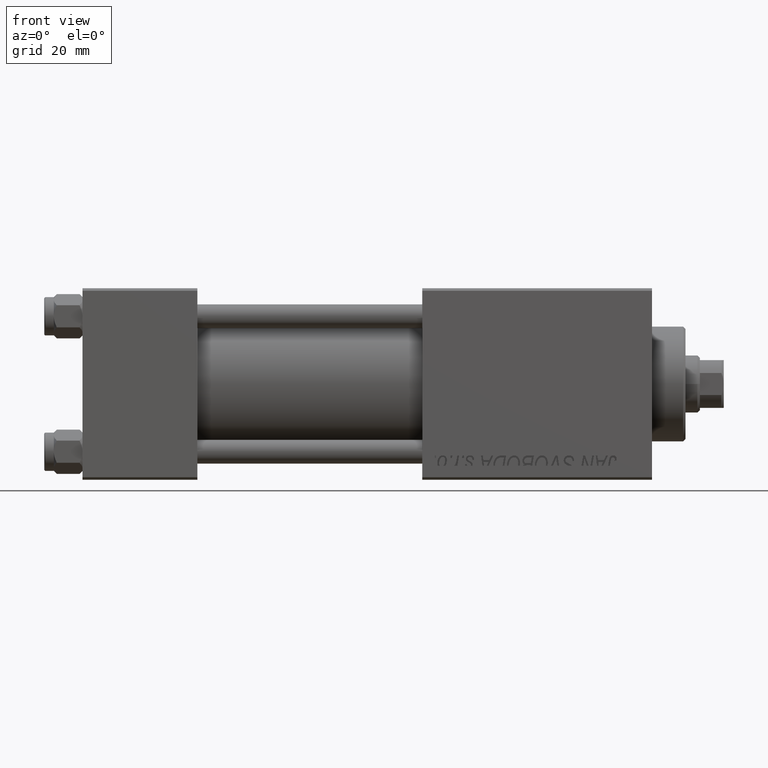
[diagram: clean part render]
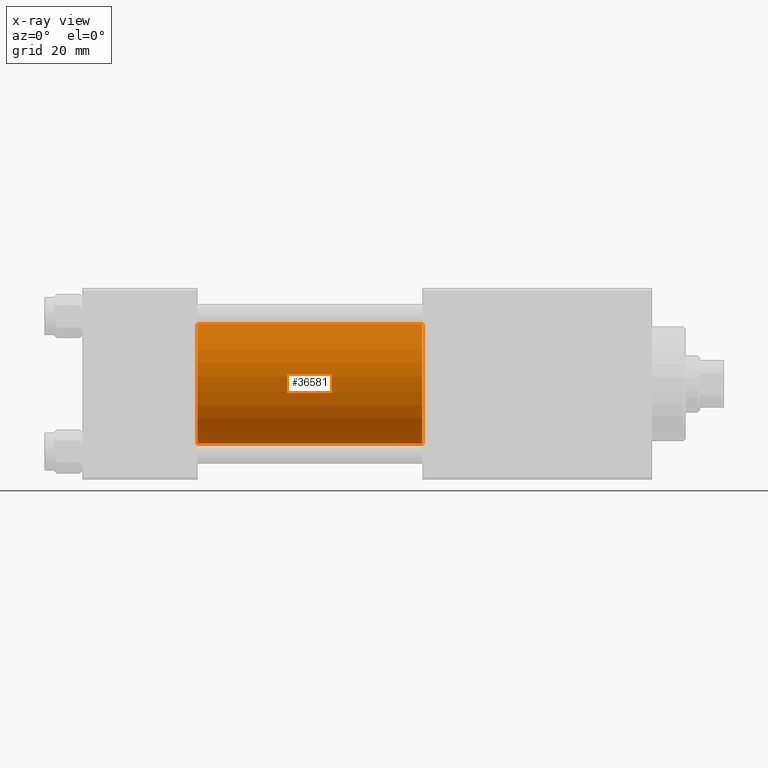
[diagram: x-ray — body ghosted, one internal face saturated and labeled with its STEP entity id]
A machine part, front view, then the same camera in x-ray: the body is ghosted and one INTERNAL B-rep face — a face not visible from any outside direction — is saturated and labeled: STEP entity #36581.
In plain terms, the highlighted cylindrical surface (partial cylindrical patch) has radius 12.5 mm, axis along (-1, -0, -0).
Its self-contained STEP definition (entity closure, byte-faithful):
#1509 = CARTESIAN_POINT ( 'NONE',  ( 71.00000000000001421, -2.602085213965210642E-15, 0.000000000000000000 ) ) ;
#2344 = VERTEX_POINT ( 'NONE', #37118 ) ;
#3014 = CARTESIAN_POINT ( 'NONE',  ( 71.00000000000001421, -1.071276715031019515E-15, -12.49999999999999645 ) ) ;
#3117 = CARTESIAN_POINT ( 'NONE',  ( 71.00000000000001421, -1.071276715031019515E-15, -12.49999999999999645 ) ) ;
#5589 = DIRECTION ( 'NONE',  ( 0.000000000000000000, 0.000000000000000000, -1.000000000000000000 ) ) ;
#7530 = CYLINDRICAL_SURFACE ( 'NONE', #22586, 12.49999999999999645 ) ;
#8474 = CARTESIAN_POINT ( 'NONE',  ( 24.00000000000000000, -2.602085213965210642E-15, 12.49999999999999645 ) ) ;
#8521 = DIRECTION ( 'NONE',  ( 0.000000000000000000, 0.000000000000000000, -1.000000000000000000 ) ) ;
#11190 = LINE ( 'NONE', #49331, #21614 ) ;
#12950 = DIRECTION ( 'NONE',  ( 1.000000000000000000, 0.000000000000000000, 0.000000000000000000 ) ) ;
#14501 = DIRECTION ( 'NONE',  ( -1.000000000000000000, -0.000000000000000000, -0.000000000000000000 ) ) ;
#19451 = ORIENTED_EDGE ( 'NONE', *, *, #21977, .T. ) ;
#19833 = CIRCLE ( 'NONE', #44187, 12.49999999999999645 ) ;
#19960 = LINE ( 'NONE', #3014, #31483 ) ;
#20738 = VERTEX_POINT ( 'NONE', #3117 ) ;
#21614 = VECTOR ( 'NONE', #14501, 1000.000000000000000 ) ;
#21977 = EDGE_CURVE ( 'NONE', #37498, #20738, #25462, .T. ) ;
#22586 = AXIS2_PLACEMENT_3D ( 'NONE', #31403, #23541, #42602 ) ;
#23541 = DIRECTION ( 'NONE',  ( -1.000000000000000000, -0.000000000000000000, -0.000000000000000000 ) ) ;
#23577 = EDGE_CURVE ( 'NONE', #37331, #2344, #19833, .T. ) ;
#23871 = AXIS2_PLACEMENT_3D ( 'NONE', #1509, #12950, #5589 ) ;
#24811 = ORIENTED_EDGE ( 'NONE', *, *, #23577, .F. ) ;
#25023 = ORIENTED_EDGE ( 'NONE', *, *, #28034, .F. ) ;
#25462 = CIRCLE ( 'NONE', #23871, 12.49999999999999645 ) ;
#27336 = FACE_OUTER_BOUND ( 'NONE', #33313, .T. ) ;
#27351 = ORIENTED_EDGE ( 'NONE', *, *, #32599, .T. ) ;
#27825 = CARTESIAN_POINT ( 'NONE',  ( 24.00000000000000000, -2.602085213965210642E-15, 0.000000000000000000 ) ) ;
#28034 = EDGE_CURVE ( 'NONE', #37498, #37331, #11190, .T. ) ;
#31403 = CARTESIAN_POINT ( 'NONE',  ( 71.00000000000001421, -2.602085213965210642E-15, 0.000000000000000000 ) ) ;
#31483 = VECTOR ( 'NONE', #35730, 1000.000000000000000 ) ;
#32599 = EDGE_CURVE ( 'NONE', #20738, #2344, #19960, .T. ) ;
#33313 = EDGE_LOOP ( 'NONE', ( #19451, #27351, #24811, #25023 ) ) ;
#35730 = DIRECTION ( 'NONE',  ( -1.000000000000000000, -0.000000000000000000, -0.000000000000000000 ) ) ;
#36581 = ADVANCED_FACE ( 'NONE', ( #27336 ), #7530, .F. ) ;
#37118 = CARTESIAN_POINT ( 'NONE',  ( 24.00000000000000000, -1.071276715031019515E-15, -12.49999999999999645 ) ) ;
#37331 = VERTEX_POINT ( 'NONE', #8474 ) ;
#37498 = VERTEX_POINT ( 'NONE', #47861 ) ;
#42602 = DIRECTION ( 'NONE',  ( 0.000000000000000000, 0.000000000000000000, 1.000000000000000000 ) ) ;
#43335 = DIRECTION ( 'NONE',  ( 1.000000000000000000, 0.000000000000000000, 0.000000000000000000 ) ) ;
#44187 = AXIS2_PLACEMENT_3D ( 'NONE', #27825, #43335, #8521 ) ;
#47861 = CARTESIAN_POINT ( 'NONE',  ( 71.00000000000001421, -2.602085213965210642E-15, 12.49999999999999645 ) ) ;
#49331 = CARTESIAN_POINT ( 'NONE',  ( 71.00000000000001421, -2.602085213965210642E-15, 12.49999999999999645 ) ) ;